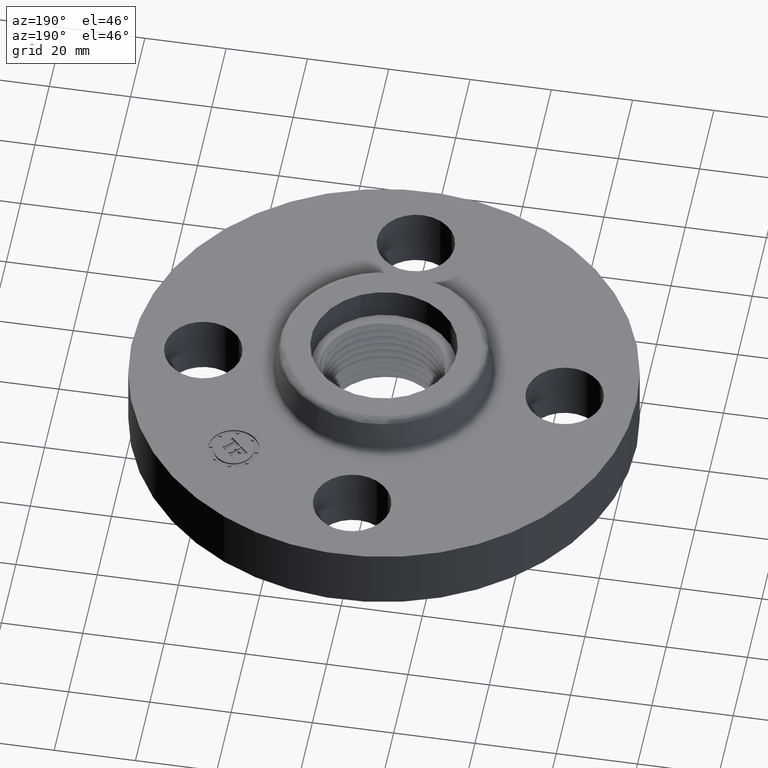
[diagram: clean part render]
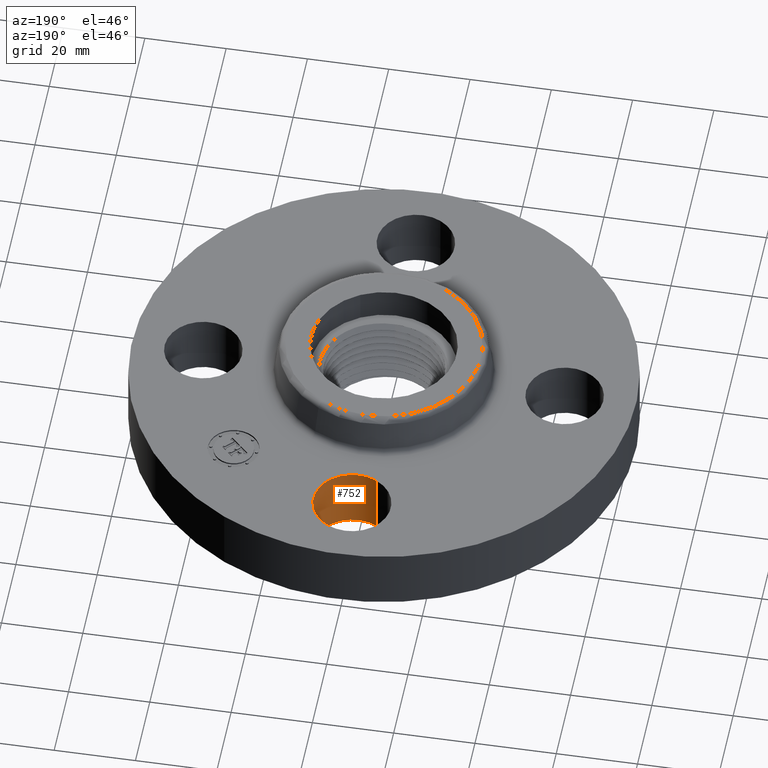
[diagram: same view with one face highlighted and labeled with its STEP entity id]
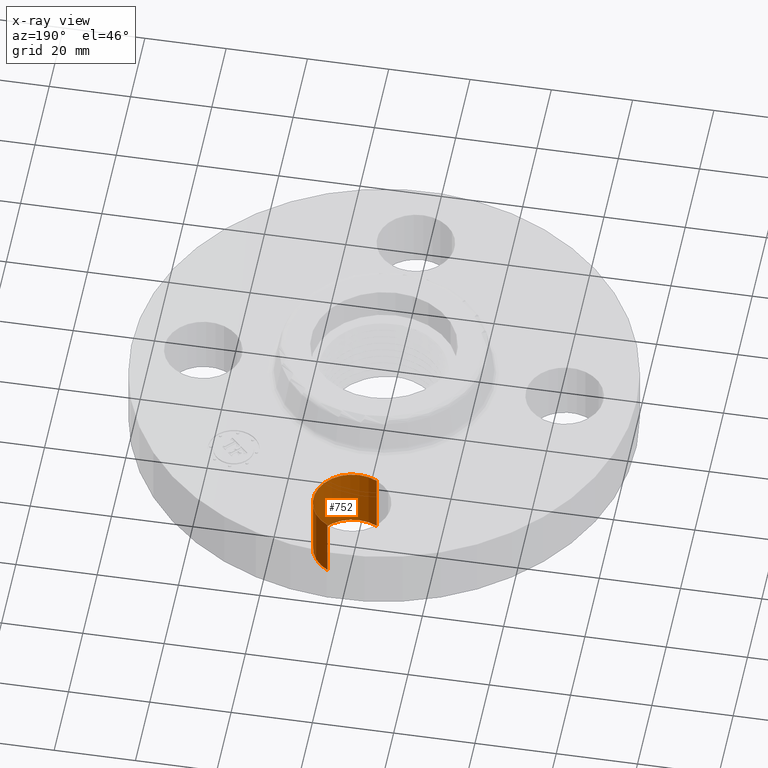
[diagram: x-ray of the same camera — body ghosted, the highlighted face saturated]
A machine part, auxiliary view. The second image highlights one B-rep face of the part: STEP entity #752.
The next image is the same camera in x-ray: the body ghosted, the highlighted face saturated — about 0% of this face is hidden behind the body in this view.
In plain terms, the highlighted cylindrical surface (partial cylindrical patch) has radius 9.525 mm, axis along (0, 0, -1).
Its self-contained STEP definition (entity closure, byte-faithful):
#702=AXIS2_PLACEMENT_3D('Circle Axis2P3D',#700,#701,$) ;
#713=AXIS2_PLACEMENT_3D('Cylinder Axis2P3D',#710,#711,#712) ;
#743=AXIS2_PLACEMENT_3D('Circle Axis2P3D',#741,#742,$) ;
#695=CARTESIAN_POINT('Vertex',(-0.179784576977,1.4209065393,0.)) ;
#697=CARTESIAN_POINT('Vertex',(0.179784576977,2.07909346072,0.)) ;
#700=CARTESIAN_POINT('Axis2P3D Location',(-3.1470888887E-016,1.75000000001,0.)) ;
#710=CARTESIAN_POINT('Axis2P3D Location',(-3.21469784777E-016,1.75000000001,0.616062992128)) ;
#715=CARTESIAN_POINT('Line Origine',(-0.179784576977,1.4209065393,0.310000000001)) ;
#719=CARTESIAN_POINT('Vertex',(-0.179784576977,1.4209065393,0.620000000002)) ;
#722=CARTESIAN_POINT('Line Origine',(0.179784576977,2.07909346072,0.310000000001)) ;
#726=CARTESIAN_POINT('Vertex',(0.179784576977,2.07909346072,0.620000000002)) ;
#741=CARTESIAN_POINT('Axis2P3D Location',(-3.21469784777E-016,1.75000000001,0.620000000002)) ;
#701=DIRECTION('Axis2P3D Direction',(0.,0.,-0.0393700787402)) ;
#711=DIRECTION('Axis2P3D Direction',(0.,0.,-0.0393700787402)) ;
#712=DIRECTION('Axis2P3D XDirection',(0.0188750212049,0.0345504945626,0.)) ;
#716=DIRECTION('Vector Direction',(0.,0.,-0.0393700787402)) ;
#723=DIRECTION('Vector Direction',(0.,0.,-0.0393700787402)) ;
#742=DIRECTION('Axis2P3D Direction',(0.,0.,-0.0393700787402)) ;
#717=VECTOR('Line Direction',#716,0.0393700787402) ;
#724=VECTOR('Line Direction',#723,0.0393700787402) ;
#747=ORIENTED_EDGE('',*,*,#728,.F.) ;
#748=ORIENTED_EDGE('',*,*,#704,.T.) ;
#749=ORIENTED_EDGE('',*,*,#721,.T.) ;
#750=ORIENTED_EDGE('',*,*,#745,.F.) ;
#752=ADVANCED_FACE('PartBody',(#751),#714,.F.) ;
#703=CIRCLE('generated circle',#702,0.375000000001) ;
#744=CIRCLE('generated circle',#743,0.375000000001) ;
#714=CYLINDRICAL_SURFACE('generated cylinder',#713,0.375000000001) ;
#704=EDGE_CURVE('',#698,#696,#703,.T.) ;
#721=EDGE_CURVE('',#696,#720,#718,.F.) ;
#728=EDGE_CURVE('',#698,#727,#725,.F.) ;
#745=EDGE_CURVE('',#727,#720,#744,.T.) ;
#746=EDGE_LOOP('',(#747,#748,#749,#750)) ;
#751=FACE_OUTER_BOUND('',#746,.T.) ;
#718=LINE('Line',#715,#717) ;
#725=LINE('Line',#722,#724) ;
#696=VERTEX_POINT('',#695) ;
#698=VERTEX_POINT('',#697) ;
#720=VERTEX_POINT('',#719) ;
#727=VERTEX_POINT('',#726) ;